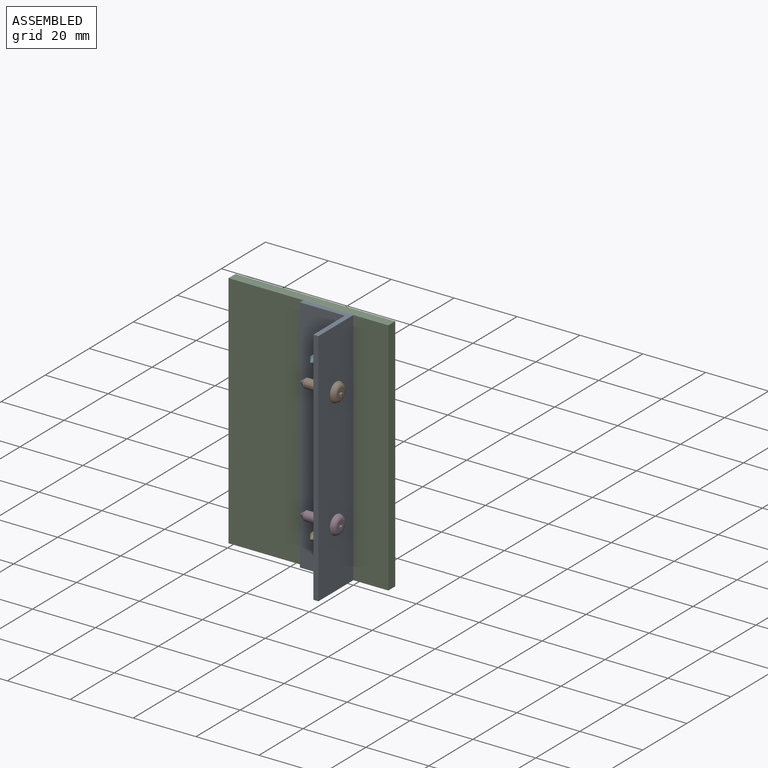
[diagram: assembled view]
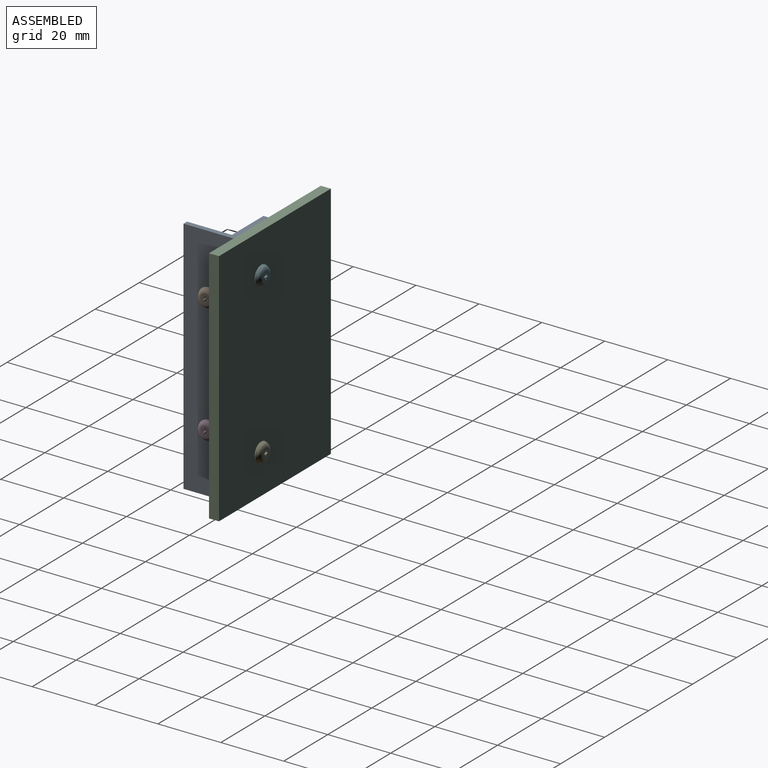
[diagram: assembled view, second angle]
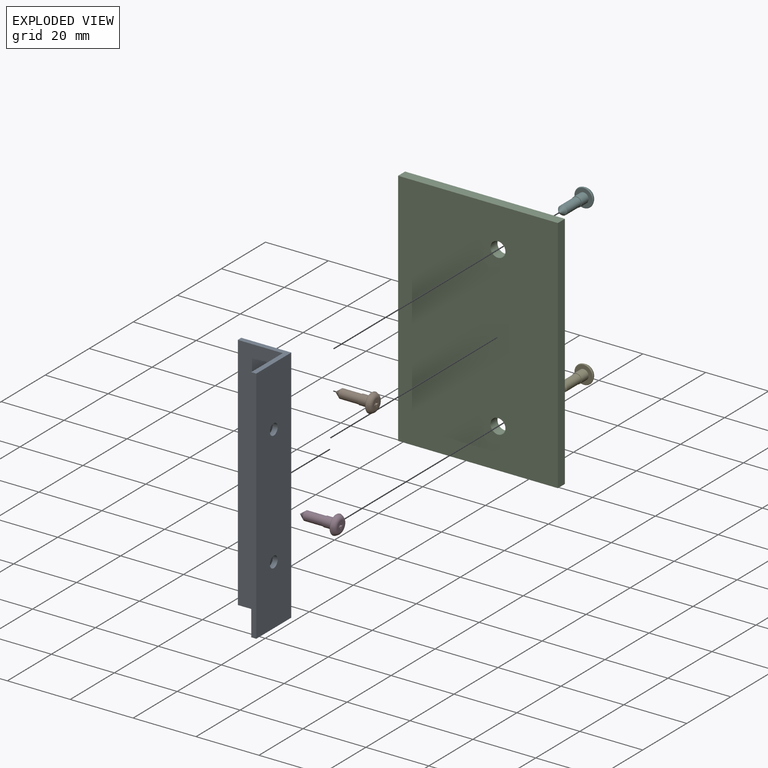
[diagram: exploded view]
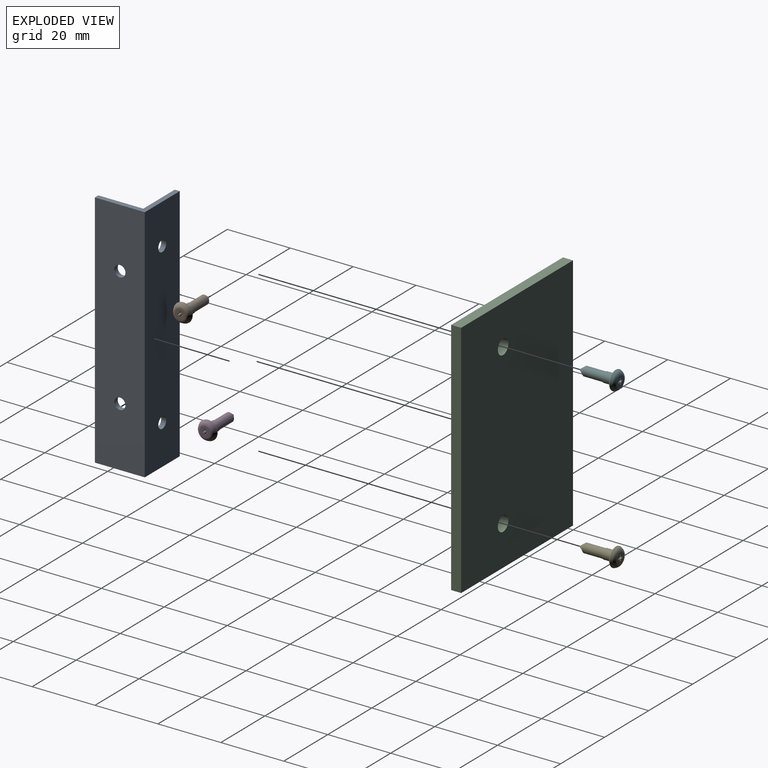
[diagram: exploded view, second angle]
ASSEMBLY  parts=6 mates=5
PART A: 12 faces, bbox 15.9x15.9x76.2 mm
  f0: plane 76.2x14.29mm, normal (0,1,0), area 1068.7mm2, adj f3,f5,f6,f7,f10,f11
  f1: plane 76.2x15.88mm, normal (0,-1,0), area 1189.6mm2, adj f2,f5,f6,f7,f10,f11
  f2: plane 76.2x15.88mm, normal (1,0,0), area 1189.6mm2, adj f1,f4,f6,f7,f8,f9
  f3: plane 76.2x14.29mm, normal (-1,0,0), area 1068.7mm2, adj f0,f4,f6,f7,f8,f9
  f4: plane 76.2x1.59mm, normal (0,1,0), area 121mm2, adj f2,f3,f6,f7
  f5: plane 76.2x1.59mm, normal (-1,0,0), area 121mm2, adj f0,f1,f6,f7
  f6: plane 15.88x15.88mm, normal (0,0,1), area 47.9mm2, adj f0,f1,f2,f3,f4,f5
  f7: plane 15.88x15.88mm, normal (0,0,-1), area 47.9mm2, adj f0,f1,f2,f3,f4,f5
  f8: cylinder r=1.79mm len=3.57mm, axis (-1,0,0), area 17.8mm2, adj f2,f3
  f9: cylinder r=1.79mm len=3.57mm, axis (-1,0,0), area 17.8mm2, adj f2,f3
  f10: cylinder r=1.79mm len=3.57mm, axis (0,-1,0), area 17.8mm2, adj f0,f1
  f11: cylinder r=1.79mm len=3.57mm, axis (0,-1,0), area 17.8mm2, adj f0,f1
PART B: 26 faces, bbox 6.5x6.5x13 mm
  f0: plane 5.53x5.53mm, normal (0,0,-1), area 16.1mm2, adj f4,f22
  f1: plane 3.19x3.19mm, normal (0,0,1), area 6.6mm2, adj f3,f5,f6,f7,f8,f9,f10,f11
  f2: cone r=3.17mm half-angle=26.6deg, axis (0,0,-1), area 10.4mm2, adj f3,f4
  f3: torus R=1.6mm, axis (0,0,1), area 19.7mm2, adj f1,f2
  f4: torus R=2.76mm, axis (0,0,1), area 9.6mm2, adj f0,f2
  f5: plane 1.59x0.25mm, normal (0.63,-0.77,0), area 0.5mm2, adj f1,f6,f20,f21
  f6: plane 1.59x0.42mm, normal (0,-1,0), area 0.7mm2, adj f1,f5,f7,f21
  f7: plane 1.59x0.42mm, normal (1,0,0), area 0.7mm2, adj f1,f6,f8,f21
  f8: plane 1.59x0.42mm, normal (0,1,0), area 0.7mm2, adj f1,f7,f9,f21
  f9: plane 1.59x0.25mm, normal (0.63,0.77,0), area 0.5mm2, adj f1,f8,f10,f21
  f10: plane 1.59x0.42mm, normal (1,0,0), area 0.7mm2, adj f1,f9,f11,f21
  f11: plane 1.59x0.42mm, normal (0,1,0), area 0.7mm2, adj f1,f10,f12,f21
  f12: plane 1.59x0.42mm, normal (-1,0,0), area 0.7mm2, adj f1,f11,f13,f21
  f13: plane 1.59x0.25mm, normal (-0.63,0.77,0), area 0.5mm2, adj f1,f12,f14,f21
  f14: plane 1.59x0.42mm, normal (0,1,0), area 0.7mm2, adj f1,f13,f15,f21
  f15: plane 1.59x0.42mm, normal (-1,0,0), area 0.7mm2, adj f1,f14,f16,f21
  f16: plane 1.59x0.42mm, normal (0,-1,0), area 0.7mm2, adj f1,f15,f17,f21
  f17: plane 1.59x0.25mm, normal (-0.63,-0.77,0), area 0.5mm2, adj f1,f16,f18,f21
  f18: plane 1.59x0.42mm, normal (-1,0,0), area 0.7mm2, adj f1,f17,f19,f21
  f19: plane 1.59x0.42mm, normal (0,-1,0), area 0.7mm2, adj f1,f18,f20,f21
  f20: plane 1.59x0.42mm, normal (1,0,0), area 0.7mm2, adj f1,f5,f19,f21
  f21: plane 1.77x1.68mm, normal (0,0,1), area 1.4mm2, adj f5,f6,f7,f8,f9,f10,f11,f12
  f22: cylinder r=1.59mm len=3.18mm, axis (0,0,1), area 31.7mm2, adj f0,f23
  f23: plane 3.18x3.18mm, normal (0,0,-1), area 1.4mm2, adj f22,f24
  f24: cylinder r=1.44mm len=6.35mm, axis (0,0,1), area 57.5mm2, adj f23,f25
  f25: cone r=1.44mm half-angle=37.1deg, axis (0,0,1), area 10.8mm2, adj f24
PART C: 8 faces, bbox 50.8x3.2x76.2 mm
  f0: plane 76.2x50.8mm, normal (0,-1,0), area 3835.3mm2, adj f1,f3,f4,f5,f6,f7
  f1: plane 76.2x3.18mm, normal (1,0,0), area 241.9mm2, adj f0,f2,f4,f5
  f2: plane 76.2x50.8mm, normal (0,1,0), area 3835.3mm2, adj f1,f3,f4,f5,f6,f7
  f3: plane 76.2x3.18mm, normal (-1,0,0), area 241.9mm2, adj f0,f2,f4,f5
  f4: plane 50.8x3.18mm, normal (0,0,1), area 161.3mm2, adj f0,f1,f2,f3
  f5: plane 50.8x3.18mm, normal (0,0,-1), area 161.3mm2, adj f0,f1,f2,f3
  f6: cylinder r=2.38mm len=4.76mm, axis (0,-1,0), area 47.5mm2, adj f0,f2
  f7: cylinder r=2.38mm len=4.76mm, axis (0,-1,0), area 47.5mm2, adj f0,f2
PART D: same geometry as B
PART E: same geometry as B
PART F: same geometry as B
PLACE A rot(axis=(0,0,1),90deg) t=(-7.94,-7.94,0)mm
PLACE B rot(axis=(0.71,0,0.71),180deg) t=(0,-7.94,19.05)mm
PLACE C t=(-14.29,1.59,-38.1)mm
PLACE D rot(axis=(0.71,0,0.71),180deg) t=(0,-7.94,-19.05)mm
PLACE E rot(axis=(-1,0,0),90deg) t=(-7.94,3.18,-25.4)mm
PLACE F rot(axis=(-1,0,0),90deg) t=(-7.94,3.18,25.4)mm
MATE fastened C.f7 <-> A.f8  axis (0,-1,0) through (-7.94,0,25.4)mm
MATE slider F.f25 <-> C.f7  axis (0,1,0) through (-7.94,-8.25,25.4)mm
MATE planar D.f2 <-> A.f1  axis (-1,0,0) through (0,-7.94,-19.05)mm
MATE slider D.f2 <-> A.f10  axis (-1,0,0) through (-9.53,-7.94,-19.05)mm
MATE planar C.f2 <-> F.f2  axis (0,1,0) through (-14.35,3.18,0)mm
